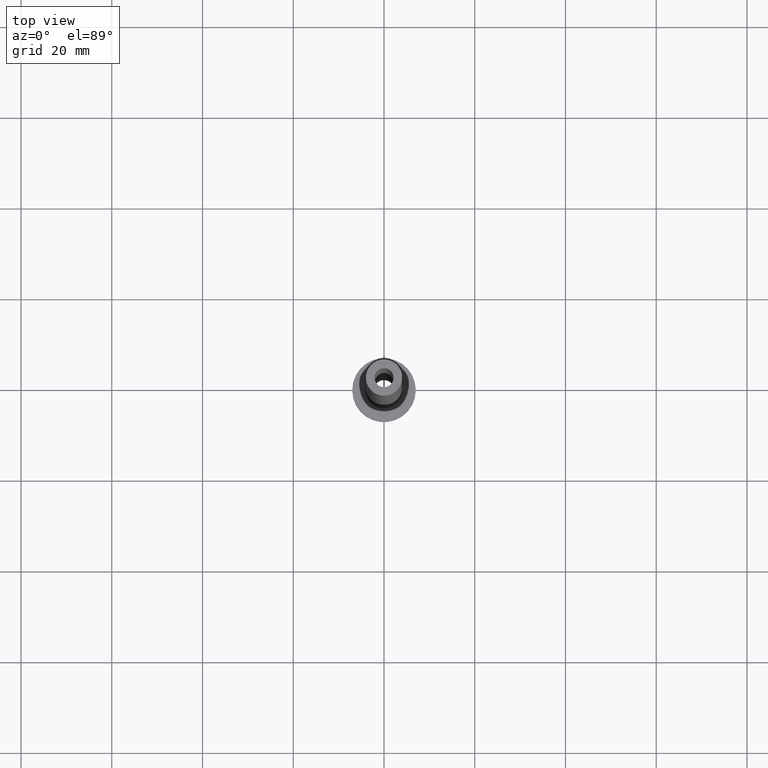
[diagram: clean part render]
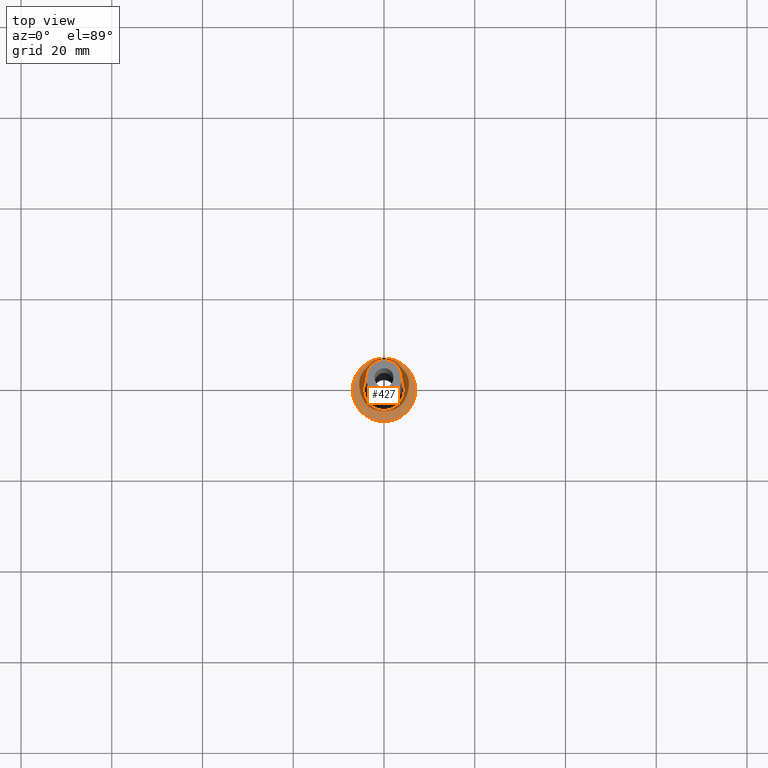
[diagram: same view with one face highlighted and labeled with its STEP entity id]
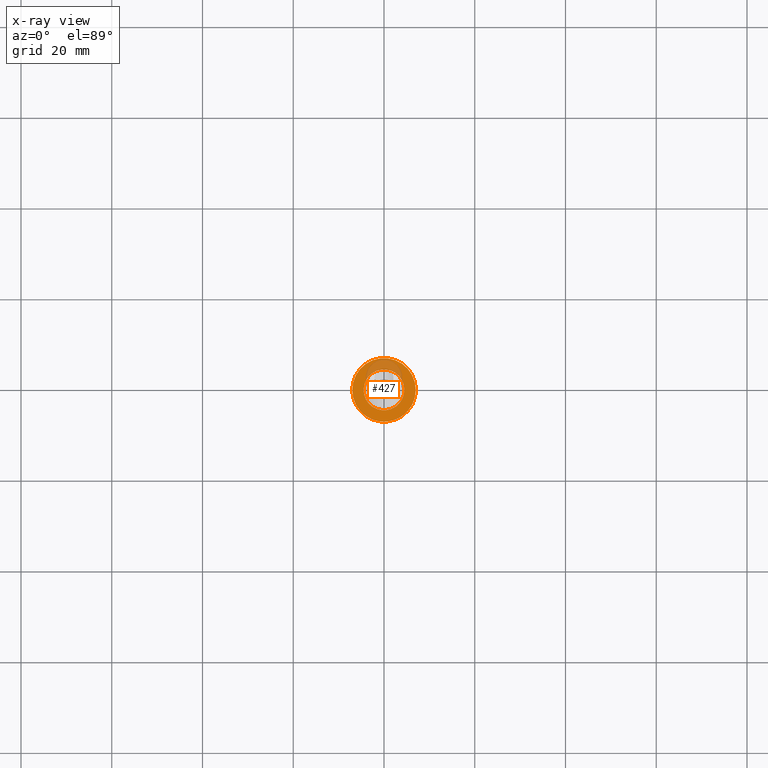
[diagram: x-ray of the same camera — body ghosted, the highlighted face saturated]
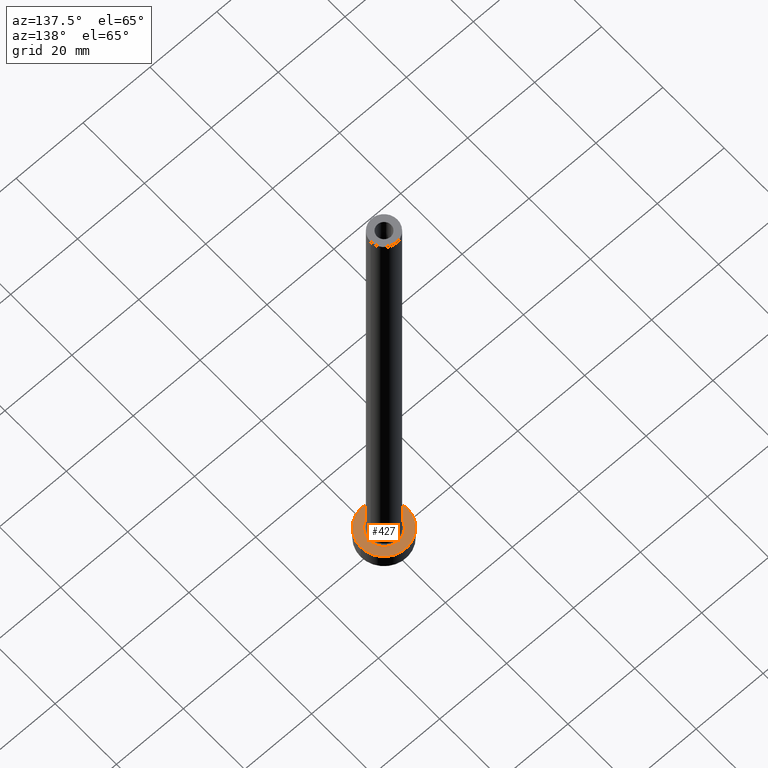
[diagram: same view with one face highlighted and labeled with its STEP entity id]
A machine part, top view. The second image highlights one B-rep face of the part: STEP entity #427.
The next image is the same camera in x-ray: the body ghosted, the highlighted face saturated — about 18% of this face is hidden behind the body in this view.
A second angle (auxiliary view) of the same face is appended — the face is thin or edge-on in the first view.
In plain terms, the highlighted planar face has unit normal (0, 0, 1).
Its self-contained STEP definition (entity closure, byte-faithful):
#3 = CARTESIAN_POINT ( 'NONE',  ( 0.000000000000000000, 0.000000000000000000, 5.000000000000000000 ) ) ;
#18 = CARTESIAN_POINT ( 'NONE',  ( 0.000000000000000000, 0.000000000000000000, 5.000000000000000000 ) ) ;
#21 = CARTESIAN_POINT ( 'NONE',  ( 4.500000000000000888, 0.000000000000000000, 5.000000000000002665 ) ) ;
#23 = PLANE ( 'NONE',  #400 ) ;
#29 = CARTESIAN_POINT ( 'NONE',  ( -4.500000000000000888, 5.510910596163088569E-16, 5.000000000000002665 ) ) ;
#49 = AXIS2_PLACEMENT_3D ( 'NONE', #3, #215, #396 ) ;
#51 = DIRECTION ( 'NONE',  ( -0.000000000000000000, -0.000000000000000000, -1.000000000000000000 ) ) ;
#59 = FACE_BOUND ( 'NONE', #246, .T. ) ;
#81 = VERTEX_POINT ( 'NONE', #89 ) ;
#89 = CARTESIAN_POINT ( 'NONE',  ( -7.000000000000000000, 0.000000000000000000, 5.000000000000000000 ) ) ;
#106 = EDGE_CURVE ( 'NONE', #401, #377, #156, .T. ) ;
#125 = DIRECTION ( 'NONE',  ( 0.000000000000000000, 0.000000000000000000, 1.000000000000000000 ) ) ;
#129 = EDGE_CURVE ( 'NONE', #81, #418, #284, .T. ) ;
#135 = ORIENTED_EDGE ( 'NONE', *, *, #140, .T. ) ;
#139 = DIRECTION ( 'NONE',  ( 1.000000000000000000, 0.000000000000000000, 0.000000000000000000 ) ) ;
#140 = EDGE_CURVE ( 'NONE', #418, #81, #217, .T. ) ;
#152 = AXIS2_PLACEMENT_3D ( 'NONE', #431, #182, #289 ) ;
#156 = CIRCLE ( 'NONE', #294, 4.500000000000000888 ) ;
#182 = DIRECTION ( 'NONE',  ( 0.000000000000000000, 0.000000000000000000, 1.000000000000000000 ) ) ;
#184 = DIRECTION ( 'NONE',  ( 1.000000000000000000, 0.000000000000000000, 0.000000000000000000 ) ) ;
#189 = CIRCLE ( 'NONE', #360, 4.500000000000000888 ) ;
#196 = EDGE_CURVE ( 'NONE', #377, #401, #189, .T. ) ;
#215 = DIRECTION ( 'NONE',  ( 0.000000000000000000, 0.000000000000000000, 1.000000000000000000 ) ) ;
#217 = CIRCLE ( 'NONE', #152, 7.000000000000000000 ) ;
#227 = CARTESIAN_POINT ( 'NONE',  ( 7.000000000000000000, 8.572527594031473190E-16, 5.000000000000000000 ) ) ;
#229 = CARTESIAN_POINT ( 'NONE',  ( 0.000000000000000000, 0.000000000000000000, 5.000000000000000000 ) ) ;
#246 = EDGE_LOOP ( 'NONE', ( #276, #312 ) ) ;
#276 = ORIENTED_EDGE ( 'NONE', *, *, #196, .T. ) ;
#284 = CIRCLE ( 'NONE', #49, 7.000000000000000000 ) ;
#289 = DIRECTION ( 'NONE',  ( 1.000000000000000000, 0.000000000000000000, 0.000000000000000000 ) ) ;
#294 = AXIS2_PLACEMENT_3D ( 'NONE', #18, #385, #139 ) ;
#312 = ORIENTED_EDGE ( 'NONE', *, *, #106, .T. ) ;
#337 = FACE_OUTER_BOUND ( 'NONE', #433, .T. ) ;
#359 = CARTESIAN_POINT ( 'NONE',  ( 0.000000000000000000, 0.000000000000000000, 5.000000000000000000 ) ) ;
#360 = AXIS2_PLACEMENT_3D ( 'NONE', #359, #51, #184 ) ;
#377 = VERTEX_POINT ( 'NONE', #21 ) ;
#385 = DIRECTION ( 'NONE',  ( -0.000000000000000000, -0.000000000000000000, -1.000000000000000000 ) ) ;
#396 = DIRECTION ( 'NONE',  ( 1.000000000000000000, 0.000000000000000000, 0.000000000000000000 ) ) ;
#400 = AXIS2_PLACEMENT_3D ( 'NONE', #229, #125, #412 ) ;
#401 = VERTEX_POINT ( 'NONE', #29 ) ;
#412 = DIRECTION ( 'NONE',  ( 1.000000000000000000, 0.000000000000000000, -0.000000000000000000 ) ) ;
#418 = VERTEX_POINT ( 'NONE', #227 ) ;
#427 = ADVANCED_FACE ( 'NONE', ( #59, #337 ), #23, .T. ) ;
#431 = CARTESIAN_POINT ( 'NONE',  ( 0.000000000000000000, 0.000000000000000000, 5.000000000000000000 ) ) ;
#433 = EDGE_LOOP ( 'NONE', ( #444, #135 ) ) ;
#444 = ORIENTED_EDGE ( 'NONE', *, *, #129, .T. ) ;